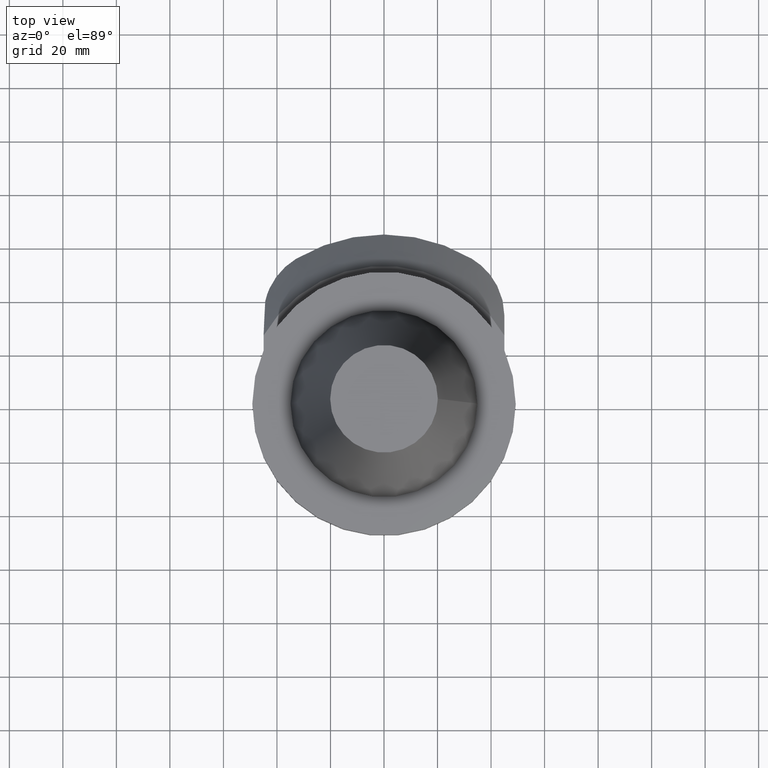
[diagram: clean part render]
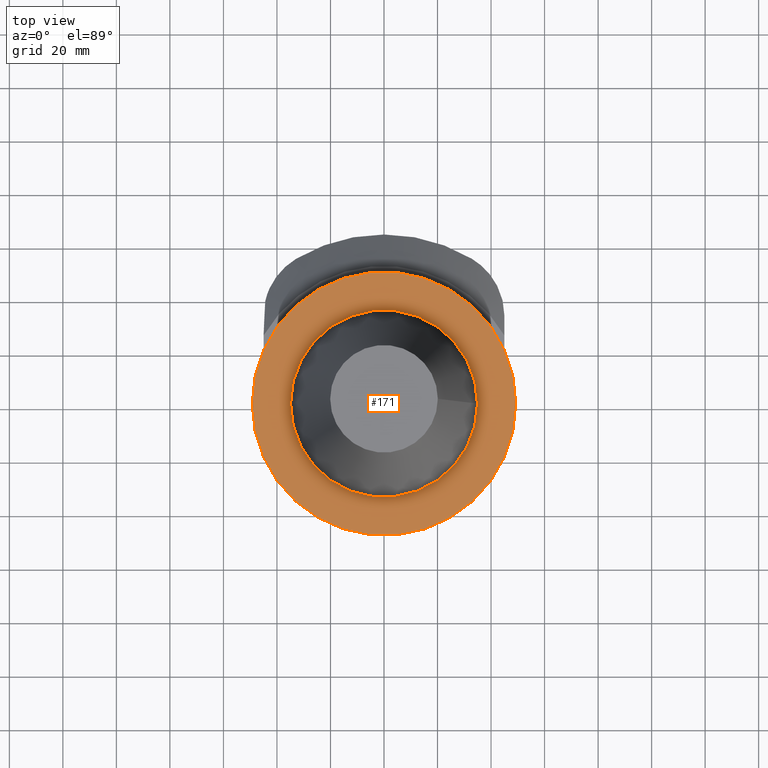
[diagram: same view with one face highlighted and labeled with its STEP entity id]
A machine part, top view. The second image highlights one B-rep face of the part: STEP entity #171.
In plain terms, the highlighted planar face has unit normal (0, 0, 1).
Its self-contained STEP definition (entity closure, byte-faithful):
#171=ADVANCED_FACE('Unnamed[1]',(#404,#405),#406,.T.);
#179=EDGE_CURVE('Unnamed[1]',#417,#417,#418,.T.);
#228=EDGE_CURVE('Unnamed[1]',#480,#480,#481,.T.);
#404=FACE_OUTER_BOUND('',#719,.T.);
#405=FACE_BOUND('',#720,.T.);
#406=PLANE('',#721);
#417=VERTEX_POINT('',#735);
#418=CIRCLE('',#736,34.925);
#480=VERTEX_POINT('',#865);
#481=CIRCLE('',#866,49.2125);
#719=EDGE_LOOP('',(#1062));
#720=EDGE_LOOP('',(#1063));
#721=AXIS2_PLACEMENT_3D('',#1064,#1065,#1066);
#735=CARTESIAN_POINT('',(34.9249999999996,-6.50746692896919E-015,-1.50000000000012));
#736=AXIS2_PLACEMENT_3D('',#1082,#1083,#1084);
#865=CARTESIAN_POINT('',(49.2124999999996,-9.13203810039186E-015,-1.50000000000017));
#866=AXIS2_PLACEMENT_3D('',#1154,#1155,#1156);
#1062=ORIENTED_EDGE('',*,*,#228,.F.);
#1063=ORIENTED_EDGE('',*,*,#179,.T.);
#1064=CARTESIAN_POINT('',(42.0687499999996,-7.81975251468052E-015,-1.50000000000014));
#1065=DIRECTION('',(3.42092429106739E-015,6.1232339957367E-017,1.0));
#1066=DIRECTION('',(-1.0,1.83697019872103E-016,3.42092429106739E-015));
#1082=CARTESIAN_POINT('',(-3.71874043193651E-013,-9.18485099359832E-017,-1.5));
#1083=DIRECTION('',(-3.41757090727388E-015,-6.1232339957367E-017,-1.0));
#1084=DIRECTION('',(1.0,-1.83697019872103E-016,-3.41757090727388E-015));
#1154=CARTESIAN_POINT('',(-3.71874043193651E-013,-9.18485099359832E-017,-1.5));
#1155=DIRECTION('',(-3.41757090727388E-015,-6.1232339957367E-017,-1.0));
#1156=DIRECTION('',(1.0,-1.83697019872103E-016,-3.41757090727388E-015));